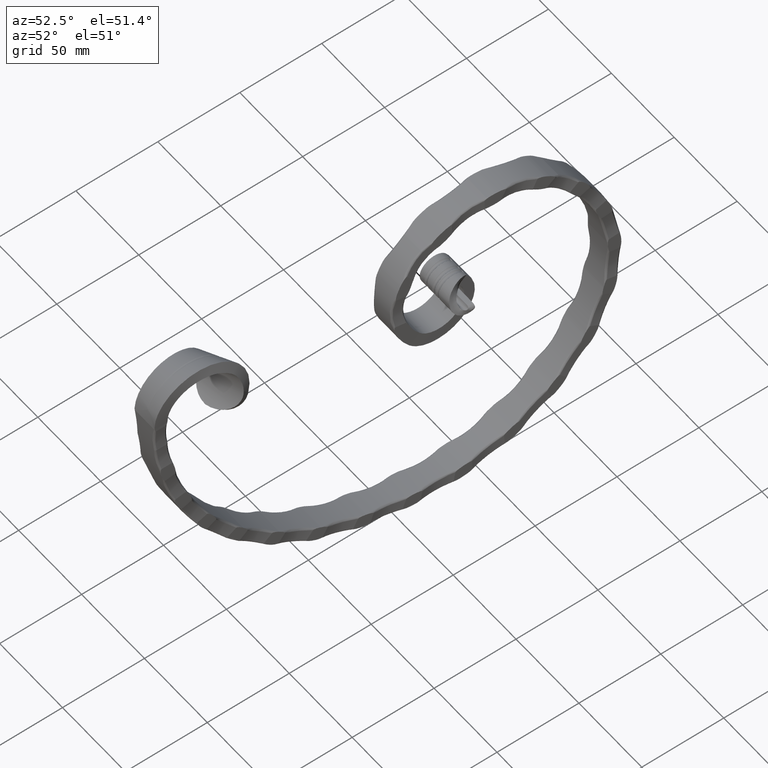
[diagram: clean part render]
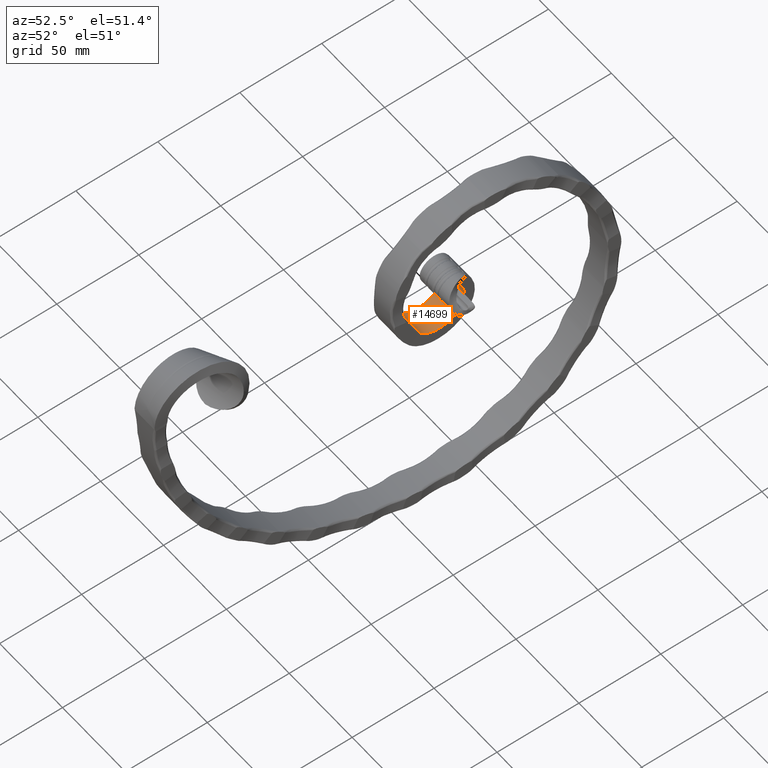
[diagram: same view with one face highlighted and labeled with its STEP entity id]
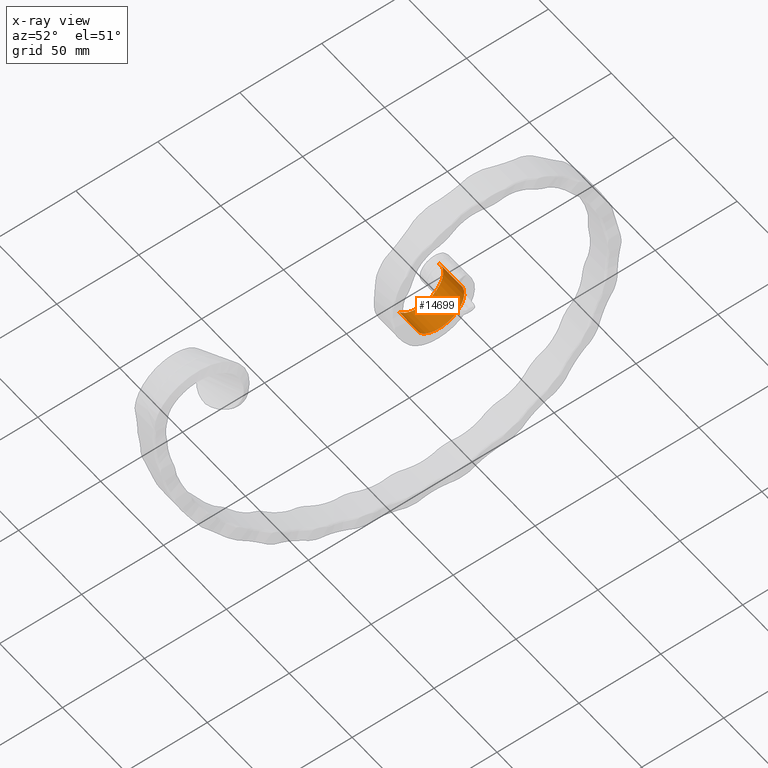
[diagram: x-ray of the same camera — body ghosted, the highlighted face saturated]
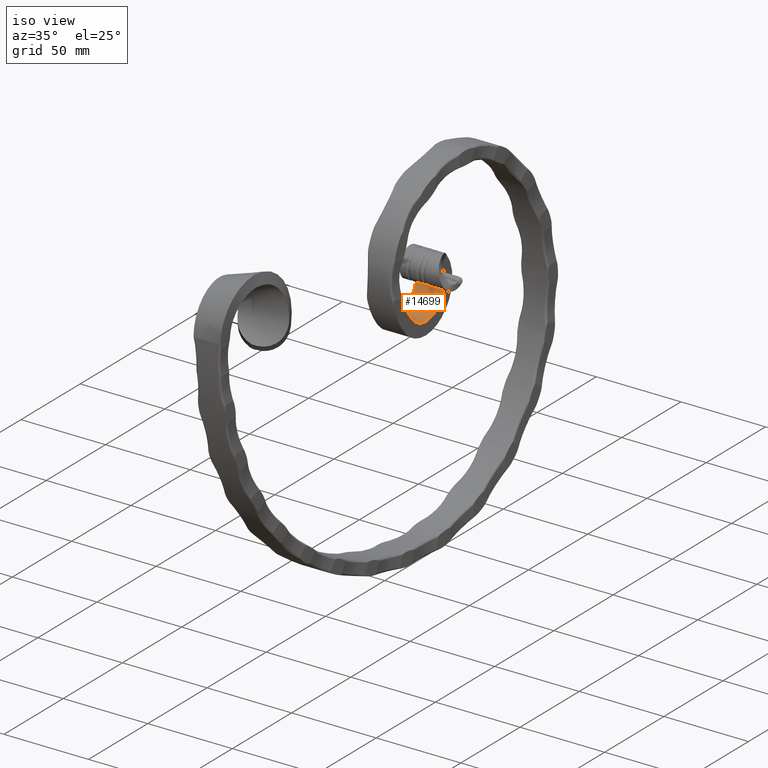
[diagram: same view with one face highlighted and labeled with its STEP entity id]
A machine part, auxiliary view. The second image highlights one B-rep face of the part: STEP entity #14699.
The next image is the same camera in x-ray: the body ghosted, the highlighted face saturated — about 0% of this face is hidden behind the body in this view.
A second angle (iso view) of the same face is appended — the face is thin or edge-on in the first view.
In plain terms, the highlighted face is a freeform B-spline surface patch.
Its self-contained STEP definition (entity closure, byte-faithful):
#493 = CARTESIAN_POINT ( 'NONE',  ( 8.250066486523589800, 182.7189808831242000, 26.94859347768106900 ) ) ;
#563 = ORIENTED_EDGE ( 'NONE', *, *, #18046, .T. ) ;
#580 = CARTESIAN_POINT ( 'NONE',  ( -8.406365414061740500, 188.8337053521957800, 40.70063097425689600 ) ) ;
#1203 = CARTESIAN_POINT ( 'NONE',  ( 8.489561530757470100, 185.9786379760132000, 48.65579948095957300 ) ) ;
#1272 = CARTESIAN_POINT ( 'NONE',  ( -8.333542805043752100, 187.7113454730708200, 33.45059248057344100 ) ) ;
#1294 = CARTESIAN_POINT ( 'NONE',  ( 8.128658068894438300, 171.6116079167786700, 23.88419828288820000 ) ) ;
#2559 = CARTESIAN_POINT ( 'NONE',  ( 8.166600478617247900, 175.3065665690096500, 23.87706117217380000 ) ) ;
#2640 = CARTESIAN_POINT ( 'NONE',  ( -8.333542805043752100, 187.7113454730708200, 33.45059248057344100 ) ) ;
#3272 = CARTESIAN_POINT ( 'NONE',  ( 8.500000000000001800, 185.3844540076063700, 49.52854428411146200 ) ) ;
#3337 = CARTESIAN_POINT ( 'NONE',  ( -8.250066486523584400, 182.7189808831242000, 26.94859347768106900 ) ) ;
#3357 = CARTESIAN_POINT ( 'NONE',  ( 8.062485535807111200, 165.7922169580485800, 25.85742726250971300 ) ) ;
#4198 = VECTOR ( 'NONE', #19599, 1000.000000000000000 ) ;
#4636 = CARTESIAN_POINT ( 'NONE',  ( 8.093758625982962600, 168.4416941193746900, 24.62763891720520300 ) ) ;
#4723 = CARTESIAN_POINT ( 'NONE',  ( -8.250066486523584400, 182.7189808831242000, 26.94859347768106900 ) ) ;
#4852 = LINE ( 'NONE', #5197, #4198 ) ;
#5197 = CARTESIAN_POINT ( 'NONE',  ( 0.0000000000000000000, 161.5374663802392400, 29.72144502399267900 ) ) ;
#5360 = CARTESIAN_POINT ( 'NONE',  ( 8.468611041803070400, 187.1711925908475400, 46.90416042990587200 ) ) ;
#5417 = CARTESIAN_POINT ( 'NONE',  ( -8.000000000000003600, 161.5374663802392400, 29.72144502399267600 ) ) ;
#5430 = CARTESIAN_POINT ( 'NONE',  ( -8.166600478617249700, 175.3065665690096500, 23.87706117217380000 ) ) ;
#5449 = CARTESIAN_POINT ( 'NONE',  ( 8.010436634056574700, 162.1548450664154500, 28.99958343591807300 ) ) ;
#5830 = ORIENTED_EDGE ( 'NONE', *, *, #22057, .T. ) ;
#6088 = B_SPLINE_CURVE_WITH_KNOTS ( 'NONE', 3,
 ( #19741, #17654, #23886, #11543, #25946, #13623, #1272, #15672, #3337, #17744, #5430, #19834, #7493, #21918, #9564, #23978, #11631 ),
 .UNSPECIFIED., .F., .F.,
 ( 4, 1, 1, 1, 1, 1, 1, 1, 1, 1, 1, 1, 1, 1, 4 ),
 ( 0.0000000000000000000, 0.06359726010367429400, 0.1276426326863242500, 0.1913667241665796300, 0.2546737413265557900, 0.3390879121470574700, 0.4228205871831891000, 0.5063595775084512900, 0.5895929023990300600, 0.6721705151691433900, 0.7547960793870937000, 0.8162611391492387000, 0.8776552787611422400, 0.9390498306199807100, 1.000000000000000000 ),
 .UNSPECIFIED. ) ;
#6268 = VERTEX_POINT ( 'NONE', #23770 ) ;
#6717 = CARTESIAN_POINT ( 'NONE',  ( 8.031385994777162200, 163.3941036940345000, 27.55059722858886300 ) ) ;
#6801 = CARTESIAN_POINT ( 'NONE',  ( -8.166600478617249700, 175.3065665690096500, 23.87706117217380000 ) ) ;
#7430 = CARTESIAN_POINT ( 'NONE',  ( 8.406365414061745900, 188.8337053521957800, 40.70063097425689600 ) ) ;
#7493 = CARTESIAN_POINT ( 'NONE',  ( -8.093758625982967900, 168.4416941193746900, 24.62763891720520300 ) ) ;
#8164 = FACE_OUTER_BOUND ( 'NONE', #13703, .T. ) ;
#8540 = CARTESIAN_POINT ( 'NONE',  ( -8.499999999999998200, 185.3844540076063700, 49.52854428411146200 ) ) ;
#8696 = CARTESIAN_POINT ( 'NONE',  ( 8.437596282033869200, 188.2908653711678000, 43.85174157751742300 ) ) ;
#8774 = CARTESIAN_POINT ( 'NONE',  ( 8.000000000000003600, 161.5374663802392400, 29.72144502399266800 ) ) ;
#8863 = CARTESIAN_POINT ( 'NONE',  ( -8.093758625982967900, 168.4416941193746900, 24.62763891720520300 ) ) ;
#8915 = EDGE_CURVE ( 'NONE', #6268, #21551, #21649, .T. ) ;
#9493 = CARTESIAN_POINT ( 'NONE',  ( 8.333542805043759200, 187.7113454730708200, 33.45059248057344100 ) ) ;
#9564 = CARTESIAN_POINT ( 'NONE',  ( -8.031385994777169300, 163.3941036940345000, 27.55059722858886300 ) ) ;
#9697 = VERTEX_POINT ( 'NONE', #17439 ) ;
#10689 = CARTESIAN_POINT ( 'NONE',  ( 8.489561530757470100, 185.9786379760132000, 48.65579948095957300 ) ) ;
#10771 = CARTESIAN_POINT ( 'NONE',  ( 8.371492826464120200, 188.7169035682747400, 37.20447087712940300 ) ) ;
#10858 = CARTESIAN_POINT ( 'NONE',  ( -8.489561530757464800, 185.9786379760132000, 48.65579948095957300 ) ) ;
#10943 = CARTESIAN_POINT ( 'NONE',  ( -8.031385994777169300, 163.3941036940345000, 27.55059722858886300 ) ) ;
#11067 = B_SPLINE_SURFACE_WITH_KNOTS ( 'NONE', 1, 3, ( 
 ( #23042, #10689, #21036, #8696, #23126, #10771, #25167, #12845, #493, #14902, #2559, #16962, #4636, #19042, #6717, #21124, #8774 ),
 ( #23210, #10858, #25255, #12927, #580, #14991, #2640, #17051, #4723, #19133, #6801, #21213, #8863, #23299, #10943, #25339, #13018 ) ),
 .UNSPECIFIED., .F., .F., .F.,
 ( 2, 2 ),
 ( 4, 1, 1, 1, 1, 1, 1, 1, 1, 1, 1, 1, 1, 1, 4 ),
 ( 0.0000000000000000000, 1.000000000000000000 ),
 ( 0.0000000000000000000, 0.06359726010367429400, 0.1276426326863242500, 0.1913667241665796300, 0.2546737413265557900, 0.3390879121470574700, 0.4228205871831891000, 0.5063595775084512900, 0.5895929023990300600, 0.6721705151691433900, 0.7547960793870937000, 0.8162611391492387000, 0.8776552787611422400, 0.9390498306199807100, 1.000000000000000000 ),
 .UNSPECIFIED. ) ;
#11543 = CARTESIAN_POINT ( 'NONE',  ( -8.437596282033867500, 188.2908653711678000, 43.85174157751742300 ) ) ;
#11561 = CARTESIAN_POINT ( 'NONE',  ( 8.250066486523589800, 182.7189808831242000, 26.94859347768106900 ) ) ;
#11631 = CARTESIAN_POINT ( 'NONE',  ( -8.000000000000003600, 161.5374663802392400, 29.72144502399267600 ) ) ;
#12818 = VECTOR ( 'NONE', #25095, 1000.000000000000000 ) ;
#12845 = CARTESIAN_POINT ( 'NONE',  ( 8.291695045305253600, 185.6494078708131200, 29.85450275950680800 ) ) ;
#12927 = CARTESIAN_POINT ( 'NONE',  ( -8.437596282033867500, 188.2908653711678000, 43.85174157751742300 ) ) ;
#13018 = CARTESIAN_POINT ( 'NONE',  ( -8.000000000000003600, 161.5374663802392400, 29.72144502399266800 ) ) ;
#13623 = CARTESIAN_POINT ( 'NONE',  ( -8.371492826464123700, 188.7169035682747400, 37.20447087712940300 ) ) ;
#13644 = CARTESIAN_POINT ( 'NONE',  ( 8.166600478617247900, 175.3065665690096500, 23.87706117217380000 ) ) ;
#13703 = EDGE_LOOP ( 'NONE', ( #5830, #563, #14504, #23905 ) ) ;
#14504 = ORIENTED_EDGE ( 'NONE', *, *, #19459, .T. ) ;
#14699 = ADVANCED_FACE ( 'NONE', ( #8164 ), #11067, .T. ) ;
#14902 = CARTESIAN_POINT ( 'NONE',  ( 8.208536372798438000, 179.1784988170277900, 24.89389334719087500 ) ) ;
#14991 = CARTESIAN_POINT ( 'NONE',  ( -8.371492826464123700, 188.7169035682747400, 37.20447087712940300 ) ) ;
#15672 = CARTESIAN_POINT ( 'NONE',  ( -8.291695045305251800, 185.6494078708131200, 29.85450275950680800 ) ) ;
#15689 = CARTESIAN_POINT ( 'NONE',  ( 8.093758625982962600, 168.4416941193746900, 24.62763891720518600 ) ) ;
#16962 = CARTESIAN_POINT ( 'NONE',  ( 8.128658068894438300, 171.6116079167786700, 23.88419828288819600 ) ) ;
#17051 = CARTESIAN_POINT ( 'NONE',  ( -8.291695045305251800, 185.6494078708131200, 29.85450275950680800 ) ) ;
#17129 = CARTESIAN_POINT ( 'NONE',  ( 8.000000000000003600, 161.5374663802392400, 29.72144502399267600 ) ) ;
#17439 = CARTESIAN_POINT ( 'NONE',  ( -8.500000000000000000, 185.3844540076063900, 49.52854428411146900 ) ) ;
#17641 = LINE ( 'NONE', #8540, #12818 ) ;
#17654 = CARTESIAN_POINT ( 'NONE',  ( -8.489561530757464800, 185.9786379760132000, 48.65579948095957300 ) ) ;
#17744 = CARTESIAN_POINT ( 'NONE',  ( -8.208536372798438000, 179.1784988170277900, 24.89389334719087500 ) ) ;
#17763 = CARTESIAN_POINT ( 'NONE',  ( 8.031385994777162200, 163.3941036940345000, 27.55059722858886300 ) ) ;
#18046 = EDGE_CURVE ( 'NONE', #9697, #20902, #6088, .T. ) ;
#19042 = CARTESIAN_POINT ( 'NONE',  ( 8.062485535807111200, 165.7922169580485800, 25.85742726250970600 ) ) ;
#19133 = CARTESIAN_POINT ( 'NONE',  ( -8.208536372798438000, 179.1784988170277900, 24.89389334719087500 ) ) ;
#19459 = EDGE_CURVE ( 'NONE', #20902, #21551, #4852, .T. ) ;
#19599 = DIRECTION ( 'NONE',  ( 1.000000000000000000, 0.0000000000000000000, 0.0000000000000000000 ) ) ;
#19741 = CARTESIAN_POINT ( 'NONE',  ( -8.500000000000000000, 185.3844540076063900, 49.52854428411146900 ) ) ;
#19763 = CARTESIAN_POINT ( 'NONE',  ( 8.437596282033869200, 188.2908653711678000, 43.85174157751742300 ) ) ;
#19834 = CARTESIAN_POINT ( 'NONE',  ( -8.128658068894436500, 171.6116079167786700, 23.88419828288819600 ) ) ;
#19855 = CARTESIAN_POINT ( 'NONE',  ( 8.000000000000003600, 161.5374663802392400, 29.72144502399267600 ) ) ;
#20902 = VERTEX_POINT ( 'NONE', #5417 ) ;
#21036 = CARTESIAN_POINT ( 'NONE',  ( 8.468611041803070400, 187.1711925908475400, 46.90416042990587200 ) ) ;
#21124 = CARTESIAN_POINT ( 'NONE',  ( 8.010436634056574700, 162.1548450664154500, 28.99958343591807300 ) ) ;
#21213 = CARTESIAN_POINT ( 'NONE',  ( -8.128658068894436500, 171.6116079167786700, 23.88419828288819600 ) ) ;
#21551 = VERTEX_POINT ( 'NONE', #17129 ) ;
#21649 = B_SPLINE_CURVE_WITH_KNOTS ( 'NONE', 3,
 ( #3272, #1203, #5360, #19763, #7430, #21846, #9493, #23909, #11561, #25966, #13644, #1294, #15689, #3357, #17763, #5449, #19855 ),
 .UNSPECIFIED., .F., .F.,
 ( 4, 1, 1, 1, 1, 1, 1, 1, 1, 1, 1, 1, 1, 1, 4 ),
 ( 0.0000000000000000000, 0.06359726010367429400, 0.1276426326863242500, 0.1913667241665796300, 0.2546737413265557900, 0.3390879121470574700, 0.4228205871831891000, 0.5063595775084512900, 0.5895929023990300600, 0.6721705151691433900, 0.7547960793870937000, 0.8162611391492387000, 0.8776552787611422400, 0.9390498306199807100, 1.000000000000000000 ),
 .UNSPECIFIED. ) ;
#21846 = CARTESIAN_POINT ( 'NONE',  ( 8.371492826464120200, 188.7169035682747400, 37.20447087712940300 ) ) ;
#21918 = CARTESIAN_POINT ( 'NONE',  ( -8.062485535807088200, 165.7922169580485800, 25.85742726250970600 ) ) ;
#22057 = EDGE_CURVE ( 'NONE', #6268, #9697, #17641, .T. ) ;
#23042 = CARTESIAN_POINT ( 'NONE',  ( 8.500000000000001800, 185.3844540076063700, 49.52854428411146200 ) ) ;
#23126 = CARTESIAN_POINT ( 'NONE',  ( 8.406365414061745900, 188.8337053521957800, 40.70063097425689600 ) ) ;
#23210 = CARTESIAN_POINT ( 'NONE',  ( -8.499999999999998200, 185.3844540076063700, 49.52854428411146200 ) ) ;
#23299 = CARTESIAN_POINT ( 'NONE',  ( -8.062485535807088200, 165.7922169580485800, 25.85742726250970600 ) ) ;
#23770 = CARTESIAN_POINT ( 'NONE',  ( 8.500000000000001800, 185.3844540076063700, 49.52854428411146200 ) ) ;
#23886 = CARTESIAN_POINT ( 'NONE',  ( -8.468611041803065100, 187.1711925908475400, 46.90416042990587200 ) ) ;
#23905 = ORIENTED_EDGE ( 'NONE', *, *, #8915, .F. ) ;
#23909 = CARTESIAN_POINT ( 'NONE',  ( 8.291695045305253600, 185.6494078708131200, 29.85450275950680800 ) ) ;
#23978 = CARTESIAN_POINT ( 'NONE',  ( -8.010436634056576500, 162.1548450664154500, 28.99958343591807300 ) ) ;
#25095 = DIRECTION ( 'NONE',  ( -1.000000000000000000, -0.0000000000000000000, -0.0000000000000000000 ) ) ;
#25167 = CARTESIAN_POINT ( 'NONE',  ( 8.333542805043759200, 187.7113454730708200, 33.45059248057344100 ) ) ;
#25255 = CARTESIAN_POINT ( 'NONE',  ( -8.468611041803065100, 187.1711925908475400, 46.90416042990587200 ) ) ;
#25339 = CARTESIAN_POINT ( 'NONE',  ( -8.010436634056576500, 162.1548450664154500, 28.99958343591807300 ) ) ;
#25946 = CARTESIAN_POINT ( 'NONE',  ( -8.406365414061740500, 188.8337053521957800, 40.70063097425689600 ) ) ;
#25966 = CARTESIAN_POINT ( 'NONE',  ( 8.208536372798438000, 179.1784988170277900, 24.89389334719087500 ) ) ;